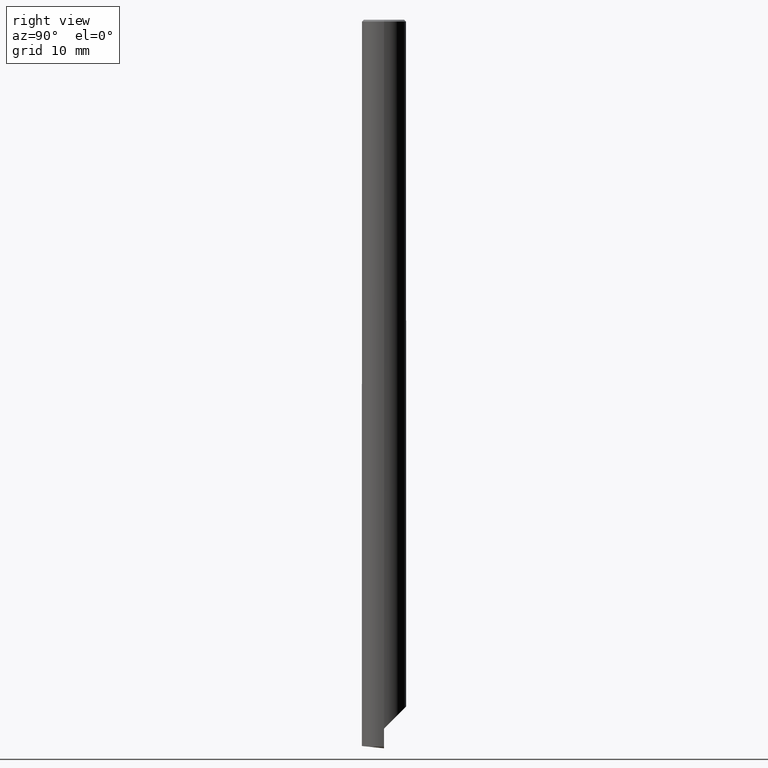
[diagram: clean part render]
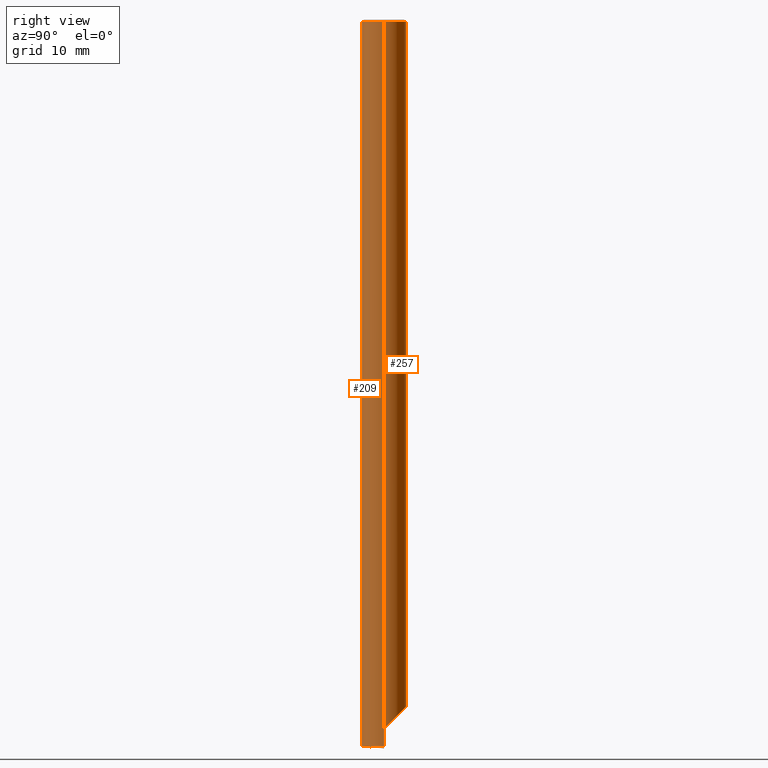
[diagram: same view with one multi-face feature highlighted, each face labeled with its STEP entity id]
A machine part, right view. The highlighted faces form ONE feature: a constant-radius fillet chain: 2 tangent blend faces with common blend radius 2.25 mm. The faces share edges in the B-rep.
Their STEP definitions:
[1] entity #209 (Cylinder):
#121=EDGE_CURVE('NONE',#279,#235,#331,.T.);
#133=VERTEX_POINT('NONE',#344);
#139=EDGE_CURVE('NONE',#213,#243,#350,.F.);
#143=EDGE_CURVE('NONE',#237,#233,#354,.F.);
#155=EDGE_CURVE('NONE',#161,#227,#367,.T.);
#161=VERTEX_POINT('NONE',#375);
#173=EDGE_CURVE('NONE',#243,#133,#388,.F.);
#189=EDGE_CURVE('NONE',#259,#279,#405,.F.);
#193=EDGE_CURVE('NONE',#237,#227,#409,.T.);
#209=ADVANCED_FACE('NONE',(#426),#427,.T.);
#213=VERTEX_POINT('NONE',#431);
#227=VERTEX_POINT('NONE',#446);
#233=VERTEX_POINT('NONE',#453);
#235=VERTEX_POINT('NONE',#455);
#237=VERTEX_POINT('NONE',#457);
#243=VERTEX_POINT('NONE',#464);
#259=VERTEX_POINT('NONE',#483);
#263=EDGE_CURVE('NONE',#233,#259,#488,.F.);
#275=EDGE_CURVE('NONE',#213,#235,#502,.T.);
#279=VERTEX_POINT('NONE',#506);
#301=EDGE_CURVE('NONE',#133,#161,#532,.T.);
#331=LINE('',#553,#554);
#344=CARTESIAN_POINT('',(2.44365590078714,-0.193655900786653,-72.1035533905933));
#350=ELLIPSE('',#589,2.25137147467235,2.25);
#354=ELLIPSE('',#596,4.50000000000001,2.25);
#367=CIRCLE('',#611,2.25);
#375=CARTESIAN_POINT('',(2.44365590078714,-0.193655900786654,-0.200000000000001));
#388=LINE('',#645,#646);
#405=CIRCLE('',#677,2.25);
#409=LINE('',#683,#684);
#426=FACE_OUTER_BOUND('',#705,.T.);
#427=CYLINDRICAL_SURFACE('',#706,2.25);
#431=CARTESIAN_POINT('',(1.95553122494828,-1.59304696196721,-73.852918072677));
#446=CARTESIAN_POINT('',(-2.05634409921286,-0.193655900786638,-0.200000000000001));
#453=CARTESIAN_POINT('',(-1.90634409921287,-1.00143062185681,-70.45));
#455=CARTESIAN_POINT('',(-1.52994409623132,-1.63992802258198,-73.8479906746526));
#457=CARTESIAN_POINT('',(-2.05634409921286,-0.193655900786638,-70.1901923788647));
#464=CARTESIAN_POINT('',(2.44365590078714,-0.193655900786653,-73.8358723833888));
#483=CARTESIAN_POINT('',(-1.90634409921286,-1.00143062185685,-72.9));
#488=LINE('',#790,#791);
#502=ELLIPSE('',#847,2.26239362901791,2.25);
#506=CARTESIAN_POINT('',(-1.52994409623057,-1.63992802258135,-72.9));
#532=LINE('',#895,#896);
#553=CARTESIAN_POINT('',(-1.52994409623132,-1.63992802258198,3.99542205296765));
#554=VECTOR('',#926,1.0);
#589=AXIS2_PLACEMENT_3D('',#943,#944,#945);
#596=AXIS2_PLACEMENT_3D('',#947,#948,#949);
#611=AXIS2_PLACEMENT_3D('',#960,#961,#962);
#645=CARTESIAN_POINT('',(2.44365590078714,-0.193655900786653,3.99542205296765));
#646=VECTOR('',#987,1.0);
#677=AXIS2_PLACEMENT_3D('',#1004,#1005,#1006);
#683=CARTESIAN_POINT('',(-2.05634409921286,-0.193655900786638,3.99542205296766));
#684=VECTOR('',#1010,1000.0);
#705=EDGE_LOOP('',(#1023,#1024,#1025,#1026,#1027,#1028,#1029,#1030,#1031,#1032));
#706=AXIS2_PLACEMENT_3D('',#1033,#1034,#1035);
#790=CARTESIAN_POINT('',(-1.90634409921286,-1.00143062185685,3.99542205296765));
#791=VECTOR('',#1098,1.0);
#847=AXIS2_PLACEMENT_3D('',#1117,#1118,#1119);
#895=CARTESIAN_POINT('',(2.44365590078714,-0.193655900786654,3.99542205296766));
#896=VECTOR('',#1156,1000.0);
#926=DIRECTION('',(0.0,0.0,-1.0));
#943=CARTESIAN_POINT('',(0.193655900787135,-0.193655900786646,-73.9144441147452));
#944=DIRECTION('',(0.0348994967025002,-1.21851012047871E-016,-0.999390827019096));
#945=DIRECTION('',(0.999390827019096,-3.4914121631855E-015,0.0348994967025003));
#947=CARTESIAN_POINT('',(0.193655900787135,-0.193655900786646,-74.0873066958947));
#948=DIRECTION('',(-0.866025403784439,3.0237132876114E-015,-0.499999999999999));
#949=DIRECTION('',(0.499999999999999,-1.7467701667822E-015,-0.866025403784439));
#960=CARTESIAN_POINT('',(0.193655900787135,-0.193655900786646,-0.200000000000002));
#961=DIRECTION('',(0.0,0.0,-1.0));
#962=DIRECTION('',(1.0,-3.4935403335644E-015,0.0));
#987=DIRECTION('',(0.0,0.0,-1.0));
#1004=CARTESIAN_POINT('',(0.193655900787135,-0.193655900786646,-72.9));
#1005=DIRECTION('',(0.0,0.0,-1.0));
#1006=DIRECTION('',(1.0,-3.4935403335644E-015,0.0));
#1010=DIRECTION('',(0.0,0.0,1.0));
#1023=ORIENTED_EDGE('',*,*,#193,.F.);
#1024=ORIENTED_EDGE('',*,*,#143,.T.);
#1025=ORIENTED_EDGE('',*,*,#263,.T.);
#1026=ORIENTED_EDGE('',*,*,#189,.T.);
#1027=ORIENTED_EDGE('',*,*,#121,.T.);
#1028=ORIENTED_EDGE('',*,*,#275,.F.);
#1029=ORIENTED_EDGE('',*,*,#139,.T.);
#1030=ORIENTED_EDGE('',*,*,#173,.T.);
#1031=ORIENTED_EDGE('',*,*,#301,.T.);
#1032=ORIENTED_EDGE('',*,*,#155,.T.);
#1033=CARTESIAN_POINT('',(0.193655900787135,-0.193655900786646,3.99542205296766));
#1034=DIRECTION('',(-0.0,-0.0,1.0));
#1035=DIRECTION('',(1.0,-3.4935403335644E-015,0.0));
#1098=DIRECTION('',(0.0,-0.0,1.0));
#1117=CARTESIAN_POINT('',(0.193655900787135,-0.193655900786646,-74.0));
#1118=DIRECTION('',(-3.64959390261321E-016,-0.104528463267647,-0.994521895368274));
#1119=DIRECTION('',(-3.47440235408198E-015,-0.994521895368274,0.104528463267647));
#1156=DIRECTION('',(0.0,0.0,1.0));
[2] entity #257 (Cylinder):
#133=VERTEX_POINT('NONE',#344);
#137=EDGE_CURVE('NONE',#179,#229,#348,.F.);
#149=VERTEX_POINT('NONE',#361);
#161=VERTEX_POINT('NONE',#375);
#165=EDGE_CURVE('NONE',#133,#179,#379,.F.);
#179=VERTEX_POINT('NONE',#394);
#191=EDGE_CURVE('NONE',#149,#237,#407,.F.);
#193=EDGE_CURVE('NONE',#237,#227,#409,.T.);
#227=VERTEX_POINT('NONE',#446);
#229=VERTEX_POINT('NONE',#448);
#237=VERTEX_POINT('NONE',#457);
#249=EDGE_CURVE('NONE',#229,#149,#471,.F.);
#257=ADVANCED_FACE('NONE',(#480),#481,.T.);
#295=EDGE_CURVE('NONE',#227,#161,#526,.F.);
#301=EDGE_CURVE('NONE',#133,#161,#532,.T.);
#344=CARTESIAN_POINT('',(2.44365590078714,-0.193655900786653,-72.1035533905933));
#348=ELLIPSE('',#586,3.18198051533945,2.25);
#361=CARTESIAN_POINT('',(-1.90634409921287,0.614118820283527,-70.45));
#375=CARTESIAN_POINT('',(2.44365590078714,-0.193655900786654,-0.200000000000001));
#379=B_SPLINE_CURVE_WITH_KNOTS('',3,(#626,#627,#628,#629,#630,#631),.UNSPECIFIED.,.F.,.F.,(4,2,4),(1.32450734006294,1.41868678834431,1.51286623662568),.UNSPECIFIED.);
#394=CARTESIAN_POINT('',(2.44246410684836,-0.120432596083281,-71.9267766952966));
#407=ELLIPSE('',#680,4.50000000000001,2.25);
#409=LINE('',#683,#684);
#446=CARTESIAN_POINT('',(-2.05634409921286,-0.193655900786638,-0.200000000000001));
#448=CARTESIAN_POINT('',(-1.90634409921286,0.614118820283547,-71.1922252789298));
#457=CARTESIAN_POINT('',(-2.05634409921286,-0.193655900786638,-70.1901923788647));
#471=LINE('',#767,#768);
#480=FACE_OUTER_BOUND('',#781,.T.);
#481=CYLINDRICAL_SURFACE('',#782,2.25);
#526=CIRCLE('',#888,2.25);
#532=LINE('',#895,#896);
#586=AXIS2_PLACEMENT_3D('',#940,#941,#942);
#626=CARTESIAN_POINT('',(2.44246410684836,-0.120432596083281,-71.9267766952966));
#627=CARTESIAN_POINT('',(2.44318671310353,-0.14262502352096,-71.9489691227343));
#628=CARTESIAN_POINT('',(2.44346748551124,-0.161865905745876,-71.9770794468861));
#629=CARTESIAN_POINT('',(2.44368332281599,-0.18738130198308,-72.0386750922446));
#630=CARTESIAN_POINT('',(2.44365590078714,-0.193655900786653,-72.0721602411661));
#631=CARTESIAN_POINT('',(2.44365590078714,-0.193655900786653,-72.1035533905933));
#680=AXIS2_PLACEMENT_3D('',#1007,#1008,#1009);
#683=CARTESIAN_POINT('',(-2.05634409921286,-0.193655900786638,3.99542205296766));
#684=VECTOR('',#1010,1000.0);
#767=CARTESIAN_POINT('',(-1.90634409921285,0.61411882028357,3.99542205296765));
#768=VECTOR('',#1069,1.0);
#781=EDGE_LOOP('',(#1081,#1082,#1083,#1084,#1085,#1086,#1087));
#782=AXIS2_PLACEMENT_3D('',#1088,#1089,#1090);
#888=AXIS2_PLACEMENT_3D('',#1153,#1154,#1155);
#895=CARTESIAN_POINT('',(2.44365590078714,-0.193655900786654,3.99542205296766));
#896=VECTOR('',#1156,1000.0);
#940=CARTESIAN_POINT('',(0.193655900787135,-0.193655900786646,-72.0));
#941=DIRECTION('',(2.46885156104043E-015,0.707106781186543,-0.707106781186552));
#942=DIRECTION('',(-2.47030606021212E-015,-0.707106781186552,-0.707106781186543));
#1007=CARTESIAN_POINT('',(0.193655900787135,-0.193655900786646,-74.0873066958947));
#1008=DIRECTION('',(-0.866025403784439,3.0237132876114E-015,-0.499999999999999));
#1009=DIRECTION('',(0.499999999999999,-1.7467701667822E-015,-0.866025403784439));
#1010=DIRECTION('',(0.0,0.0,1.0));
#1069=DIRECTION('',(0.0,0.0,-1.0));
#1081=ORIENTED_EDGE('',*,*,#191,.T.);
#1082=ORIENTED_EDGE('',*,*,#193,.T.);
#1083=ORIENTED_EDGE('',*,*,#295,.T.);
#1084=ORIENTED_EDGE('',*,*,#301,.F.);
#1085=ORIENTED_EDGE('',*,*,#165,.T.);
#1086=ORIENTED_EDGE('',*,*,#137,.T.);
#1087=ORIENTED_EDGE('',*,*,#249,.T.);
#1088=CARTESIAN_POINT('',(0.193655900787135,-0.193655900786646,3.99542205296766));
#1089=DIRECTION('',(-0.0,-0.0,1.0));
#1090=DIRECTION('',(1.0,-3.4935403335644E-015,0.0));
#1153=CARTESIAN_POINT('',(0.193655900787135,-0.193655900786646,-0.200000000000002));
#1154=DIRECTION('',(0.0,-0.0,1.0));
#1155=DIRECTION('',(1.0,-3.4935403335644E-015,-0.0));
#1156=DIRECTION('',(0.0,0.0,1.0));